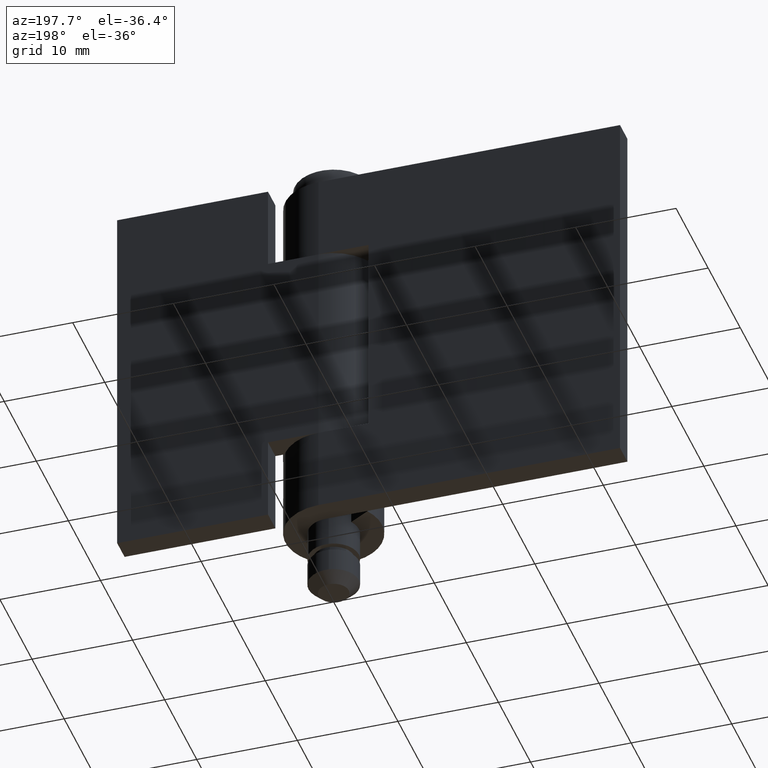
[diagram: clean part render]
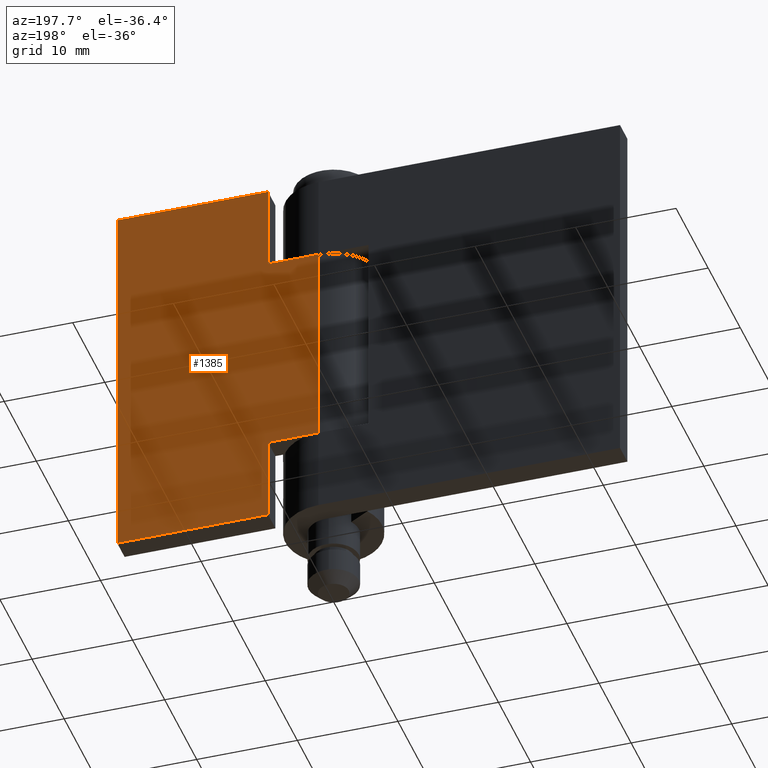
[diagram: same view with one face highlighted and labeled with its STEP entity id]
A machine part, auxiliary view. The second image highlights one B-rep face of the part: STEP entity #1385.
In plain terms, the highlighted face is a freeform B-spline surface patch.
Its self-contained STEP definition (entity closure, byte-faithful):
#999=CARTESIAN_POINT('',(0.0,4.799999000000000,8.500000000000000));
#1000=VERTEX_POINT('',#999);
#1020=CARTESIAN_POINT('',(5.0,4.799998999999940,8.500000000000000));
#1021=VERTEX_POINT('',#1020);
#1022=CARTESIAN_POINT('',(5.0,4.799998999999940,8.500000000000000));
#1023=CARTESIAN_POINT('',(0.0,4.799999000000000,8.500000000000000));
#1024=QUASI_UNIFORM_CURVE('',1,(#1022,#1023),.UNSPECIFIED.,.F.,.U.);
#1025=EDGE_CURVE('',#1021,#1000,#1024,.T.);
#1076=CARTESIAN_POINT('',(5.0,4.799999000000000,0.0));
#1077=VERTEX_POINT('',#1076);
#1078=CARTESIAN_POINT('',(5.0,4.799999000000000,0.0));
#1079=CARTESIAN_POINT('',(5.0,4.799998999999940,8.500000000000000));
#1080=QUASI_UNIFORM_CURVE('',1,(#1078,#1079),.UNSPECIFIED.,.F.,.U.);
#1081=EDGE_CURVE('',#1077,#1021,#1080,.T.);
#1103=CARTESIAN_POINT('',(0.0,4.799999000000000,29.500000000000000));
#1104=VERTEX_POINT('',#1103);
#1161=CARTESIAN_POINT('',(5.0,4.799998999999940,29.500000000000000));
#1162=VERTEX_POINT('',#1161);
#1168=CARTESIAN_POINT('',(5.0,4.799998999999940,29.500000000000000));
#1169=CARTESIAN_POINT('',(0.0,4.799999000000000,29.500000000000000));
#1170=QUASI_UNIFORM_CURVE('',1,(#1168,#1169),.UNSPECIFIED.,.F.,.U.);
#1171=EDGE_CURVE('',#1162,#1104,#1170,.T.);
#1183=CARTESIAN_POINT('',(5.0,4.799998999999940,38.0));
#1184=VERTEX_POINT('',#1183);
#1190=CARTESIAN_POINT('',(5.0,4.799998999999940,38.0));
#1191=CARTESIAN_POINT('',(5.0,4.799998999999940,29.500000000000000));
#1192=QUASI_UNIFORM_CURVE('',1,(#1190,#1191),.UNSPECIFIED.,.F.,.U.);
#1193=EDGE_CURVE('',#1184,#1162,#1192,.T.);
#1210=CARTESIAN_POINT('',(20.0,4.799999000000000,0.0));
#1211=VERTEX_POINT('',#1210);
#1212=CARTESIAN_POINT('',(20.0,4.799999000000000,0.0));
#1213=CARTESIAN_POINT('',(5.0,4.799999000000000,0.0));
#1214=QUASI_UNIFORM_CURVE('',1,(#1212,#1213),.UNSPECIFIED.,.F.,.U.);
#1215=EDGE_CURVE('',#1211,#1077,#1214,.T.);
#1237=CARTESIAN_POINT('',(20.0,4.799999000000000,38.0));
#1238=VERTEX_POINT('',#1237);
#1239=CARTESIAN_POINT('',(20.0,4.799999000000000,38.0));
#1240=CARTESIAN_POINT('',(5.0,4.799998999999940,38.0));
#1241=QUASI_UNIFORM_CURVE('',1,(#1239,#1240),.UNSPECIFIED.,.F.,.U.);
#1242=EDGE_CURVE('',#1238,#1184,#1241,.T.);
#1358=CARTESIAN_POINT('',(0.0,4.799999000000000,29.500000000000000));
#1359=CARTESIAN_POINT('',(0.0,4.799999000000000,8.500000000000000));
#1360=QUASI_UNIFORM_CURVE('',1,(#1358,#1359),.UNSPECIFIED.,.F.,.U.);
#1361=EDGE_CURVE('',#1104,#1000,#1360,.T.);
#1366=CARTESIAN_POINT('',(-0.998999961236120,4.799999000000000,39.898099926348621));
#1367=CARTESIAN_POINT('',(-0.998999961236120,4.799999000000000,-1.898100945588053));
#1368=CARTESIAN_POINT('',(20.999000497677919,4.799999000000000,39.898099926348621));
#1369=CARTESIAN_POINT('',(20.999000497677919,4.799999000000000,-1.898100945588053));
#1370=B_SPLINE_SURFACE_WITH_KNOTS('',1,1,((#1366,#1368),(#1367,#1369)),.UNSPECIFIED.,.F.,.F.,.U.,(2,2),(2,2),(0.0,41.796200871936684),(0.0,21.998000458914039),.UNSPECIFIED.);
#1371=ORIENTED_EDGE('',*,*,#1215,.T.);
#1372=ORIENTED_EDGE('',*,*,#1081,.T.);
#1373=ORIENTED_EDGE('',*,*,#1025,.T.);
#1374=ORIENTED_EDGE('',*,*,#1361,.F.);
#1375=ORIENTED_EDGE('',*,*,#1171,.F.);
#1376=ORIENTED_EDGE('',*,*,#1193,.F.);
#1377=ORIENTED_EDGE('',*,*,#1242,.F.);
#1378=CARTESIAN_POINT('',(20.0,4.799999000000000,38.0));
#1379=CARTESIAN_POINT('',(20.0,4.799999000000000,0.0));
#1380=QUASI_UNIFORM_CURVE('',1,(#1378,#1379),.UNSPECIFIED.,.F.,.U.);
#1381=EDGE_CURVE('',#1238,#1211,#1380,.T.);
#1382=ORIENTED_EDGE('',*,*,#1381,.T.);
#1383=EDGE_LOOP('',(#1371,#1372,#1373,#1374,#1375,#1376,#1377,#1382));
#1384=FACE_OUTER_BOUND('',#1383,.T.);
#1385=ADVANCED_FACE('',(#1384),#1370,.F.);